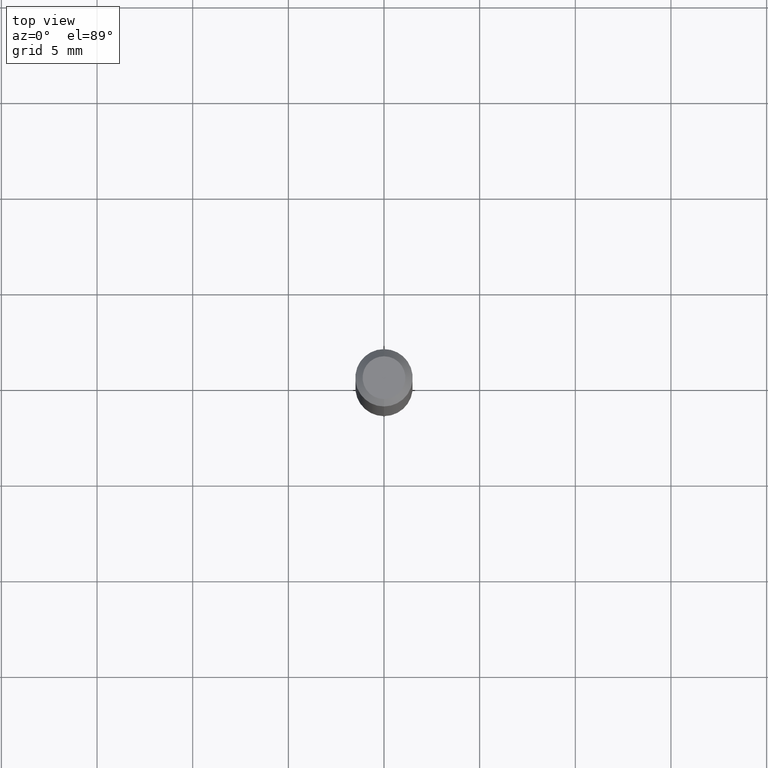
[diagram: clean part render]
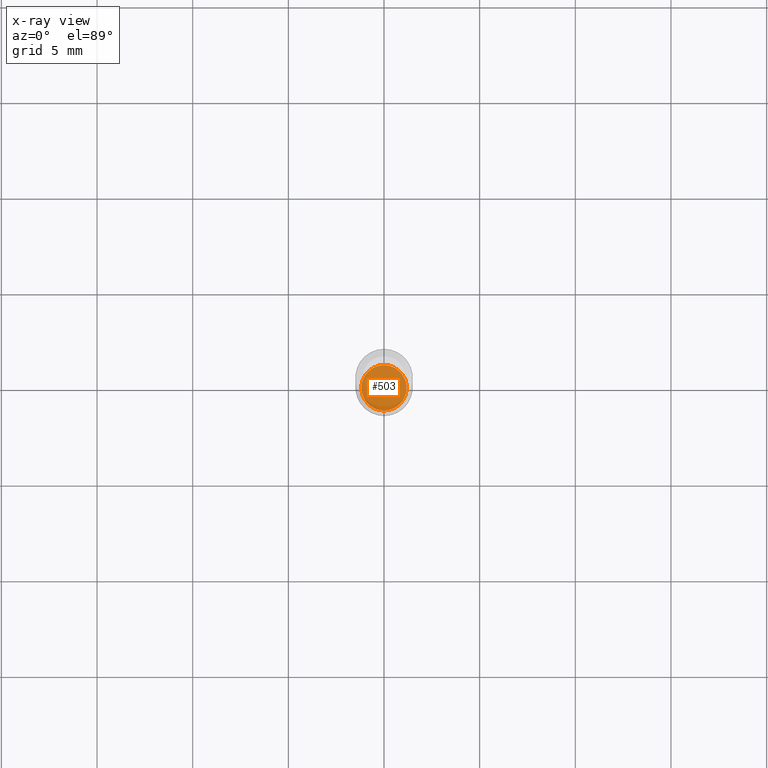
[diagram: x-ray — body ghosted, one internal face saturated and labeled with its STEP entity id]
A machine part, top view, then the same camera in x-ray: the body is ghosted and one INTERNAL B-rep face — a face not visible from any outside direction — is saturated and labeled: STEP entity #503.
In plain terms, the highlighted planar face has unit normal (-0, 0, 1).
Its self-contained STEP definition (entity closure, byte-faithful):
#114 = CARTESIAN_POINT ( 'NONE',  ( -3.264535051818032208E-16, -0.04675000000000423261, -1.212599999999999900 ) ) ;
#120 = DIRECTION ( 'NONE',  ( -6.982962677686266711E-15, -1.000000000000000000, 2.921762560068730989E-15 ) ) ;
#129 = CIRCLE ( 'NONE', #161, 0.04674999999999999295 ) ;
#160 = VERTEX_POINT ( 'NONE', #114 ) ;
#161 = AXIS2_PLACEMENT_3D ( 'NONE', #264, #342, #437 ) ;
#211 = CARTESIAN_POINT ( 'NONE',  ( 2.965324045221675082E-29, -4.233843920963223096E-15, -1.212599999999999900 ) ) ;
#215 = DIRECTION ( 'NONE',  ( -6.982962677686265922E-15, -1.000000000000000000, 3.491542075674767907E-15 ) ) ;
#217 = FACE_OUTER_BOUND ( 'NONE', #367, .T. ) ;
#239 = AXIS2_PLACEMENT_3D ( 'NONE', #211, #295, #120 ) ;
#242 = DIRECTION ( 'NONE',  ( -2.445426393882298234E-29, 3.491542075674767907E-15, 1.000000000000000000 ) ) ;
#250 = CARTESIAN_POINT ( 'NONE',  ( 2.965324045221675082E-29, -4.233843920963223096E-15, -1.212599999999999900 ) ) ;
#264 = CARTESIAN_POINT ( 'NONE',  ( 2.965324045221675082E-29, -4.233843920963223096E-15, -1.212599999999999900 ) ) ;
#287 = PLANE ( 'NONE',  #457 ) ;
#295 = DIRECTION ( 'NONE',  ( -2.445426393882298514E-29, 3.491542075674767907E-15, 1.000000000000000000 ) ) ;
#334 = ORIENTED_EDGE ( 'NONE', *, *, #353, .F. ) ;
#342 = DIRECTION ( 'NONE',  ( -2.445426393882298514E-29, 3.491542075674767907E-15, 1.000000000000000000 ) ) ;
#353 = EDGE_CURVE ( 'NONE', #160, #441, #129, .T. ) ;
#367 = EDGE_LOOP ( 'NONE', ( #334, #410 ) ) ;
#373 = CARTESIAN_POINT ( 'NONE',  ( 3.339550858072768183E-16, 0.04674999999999576022, -1.212600000000000122 ) ) ;
#388 = CIRCLE ( 'NONE', #239, 0.04674999999999999295 ) ;
#410 = ORIENTED_EDGE ( 'NONE', *, *, #417, .F. ) ;
#417 = EDGE_CURVE ( 'NONE', #441, #160, #388, .T. ) ;
#437 = DIRECTION ( 'NONE',  ( -6.982962677686266711E-15, -1.000000000000000000, 2.921762560068730989E-15 ) ) ;
#441 = VERTEX_POINT ( 'NONE', #373 ) ;
#457 = AXIS2_PLACEMENT_3D ( 'NONE', #250, #242, #215 ) ;
#503 = ADVANCED_FACE ( 'NONE', ( #217 ), #287, .F. ) ;